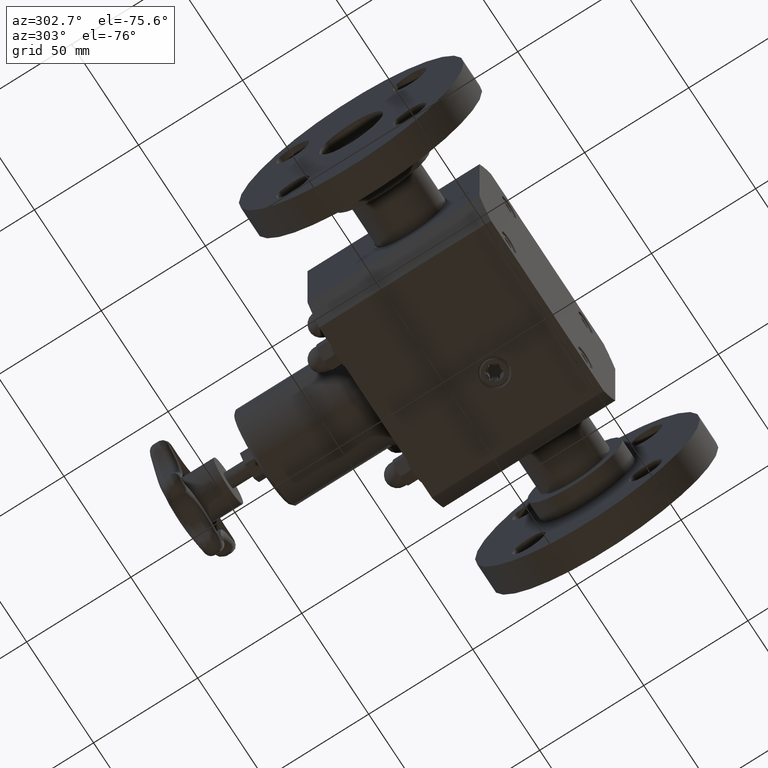
[diagram: clean part render]
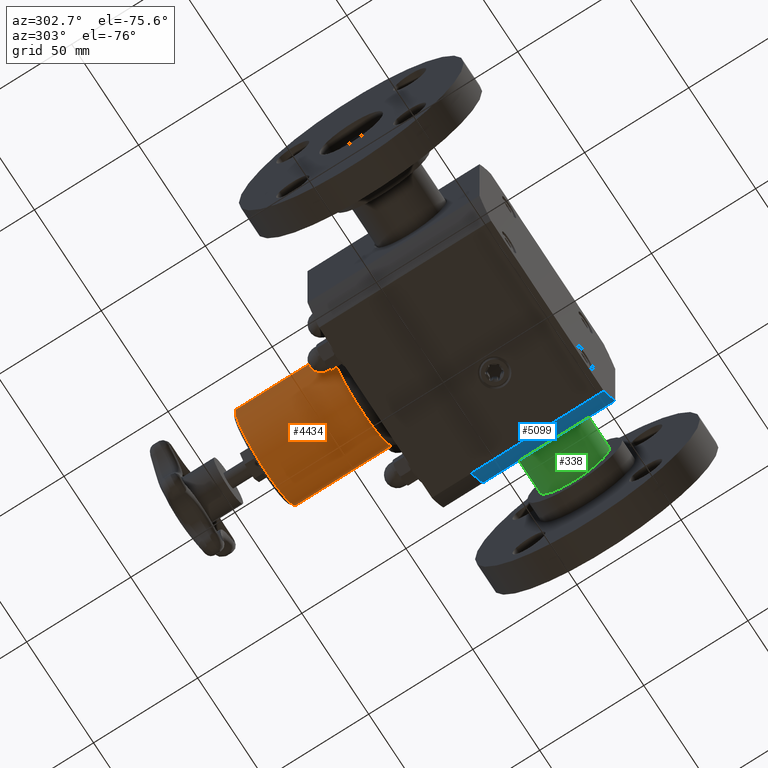
[diagram: same view with three faces highlighted in distinct colors, each labeled with its STEP entity id]
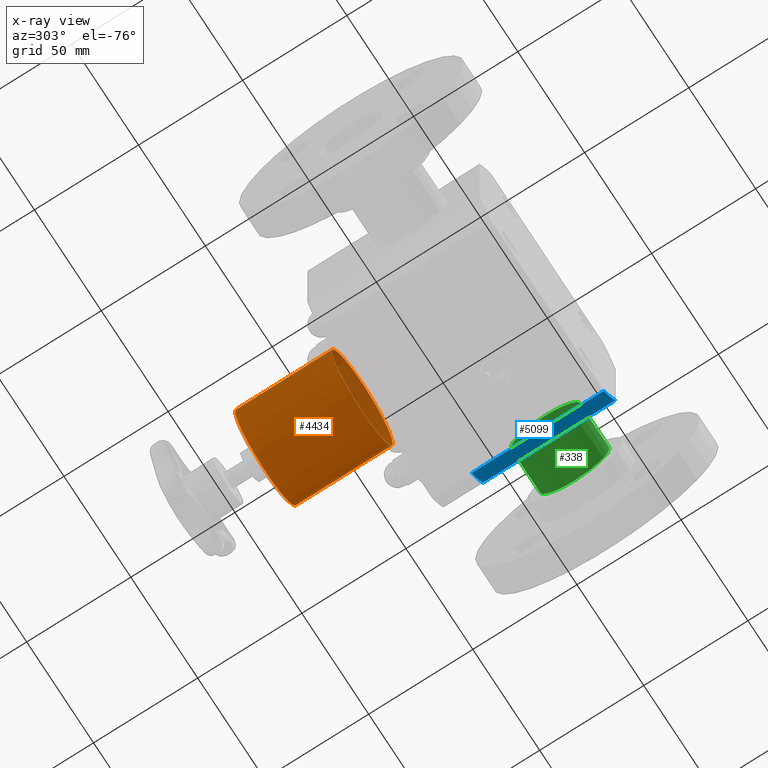
[diagram: x-ray of the same camera — body ghosted, the three highlighted faces saturated]
A machine part, auxiliary view with three faces highlighted in distinct colors.
The next image is the same camera in x-ray (body ghosted, the three faces saturated) — at least one of them is partly hidden behind the body in this view.
Their STEP definitions:

[orange] entity #4434 — the highlighted cylindrical surface (bore or boss wall) has radius 22.86 mm, axis along (0, -1, 0).
#4400=CARTESIAN_POINT('',(0.900000000000000,5.325000000000000,7.037240E-016));
#4401=VERTEX_POINT('',#4400);
#4402=CARTESIAN_POINT('',(6.993531E-016,5.325000000000000,5.463696E-016));
#4403=DIRECTION('',(0.0,-1.0,0.0));
#4404=DIRECTION('',(1.0,0.0,0.0));
#4405=AXIS2_PLACEMENT_3D('',#4402,#4403,#4404);
#4406=CIRCLE('',#4405,0.900000000000000);
#4407=EDGE_CURVE('',#4401,#4401,#4406,.T.);
#4415=CARTESIAN_POINT('',(6.993531E-016,4.412500000000000,5.463696E-016));
#4416=DIRECTION('',(5.780896E-045,-1.0,1.900469E-060));
#4417=DIRECTION('',(1.0,0.0,0.0));
#4418=AXIS2_PLACEMENT_3D('',#4415,#4416,#4417);
#4419=CYLINDRICAL_SURFACE('',#4418,0.900000000000000);
#4420=CARTESIAN_POINT('',(0.900000000000001,3.500000000000000,7.037240E-016));
#4421=VERTEX_POINT('',#4420);
#4422=CARTESIAN_POINT('',(6.993531E-016,3.500000000000000,5.463696E-016));
#4423=DIRECTION('',(0.0,-1.0,0.0));
#4424=DIRECTION('',(1.0,0.0,0.0));
#4425=AXIS2_PLACEMENT_3D('',#4422,#4423,#4424);
#4426=CIRCLE('',#4425,0.900000000000000);
#4427=EDGE_CURVE('',#4421,#4421,#4426,.T.);
#4428=ORIENTED_EDGE('',*,*,#4427,.F.);
#4429=EDGE_LOOP('',(#4428));
#4430=FACE_OUTER_BOUND('',#4429,.T.);
#4431=ORIENTED_EDGE('',*,*,#4407,.T.);
#4432=EDGE_LOOP('',(#4431));
#4433=FACE_BOUND('',#4432,.T.);
#4434=ADVANCED_FACE('',(#4430,#4433),#4419,.T.);

[blue] entity #5099 — the highlighted cylindrical surface (partial cylindrical patch) has radius 56.8452 mm, axis along (-0, 1, 0).
#4573=CARTESIAN_POINT('',(2.0,2.500000000000000,-1.004312700308026));
#4574=VERTEX_POINT('',#4573);
#4581=CARTESIAN_POINT('',(1.660916614403023,2.500000000000000,-1.500000000000000));
#4582=VERTEX_POINT('',#4581);
#4583=CARTESIAN_POINT('',(-1.445224E-044,2.500000000000000,0.0));
#4584=DIRECTION('',(4.616735E-045,-1.000000000000000,-2.318323E-045));
#4585=DIRECTION('',(-0.893655049151028,-5.166127E-045,0.448754557778385));
#4586=AXIS2_PLACEMENT_3D('',#4583,#4584,#4585);
#4587=CIRCLE('',#4586,2.238000000000000);
#4588=EDGE_CURVE('',#4582,#4574,#4587,.T.);
#4649=CARTESIAN_POINT('',(2.0,1.156179E-044,-1.004312700308026));
#4650=VERTEX_POINT('',#4649);
#4657=CARTESIAN_POINT('',(2.0,1.156179E-044,-1.004312700308026));
#4658=DIRECTION('',(0.0,1.0,0.0));
#4659=VECTOR('',#4658,2.500000000000000);
#4660=LINE('',#4657,#4659);
#4661=EDGE_CURVE('',#4650,#4574,#4660,.T.);
#4704=CARTESIAN_POINT('',(1.660916614403023,9.601586E-045,-1.500000000000000));
#4705=VERTEX_POINT('',#4704);
#4706=CARTESIAN_POINT('',(1.660916614403023,9.601586E-045,-1.500000000000000));
#4707=DIRECTION('',(0.0,1.0,0.0));
#4708=VECTOR('',#4707,2.500000000000000);
#4709=LINE('',#4706,#4708);
#4710=EDGE_CURVE('',#4705,#4582,#4709,.T.);
#5082=CARTESIAN_POINT('',(0.0,0.0,0.0));
#5083=DIRECTION('',(-5.780896E-045,1.0,0.0));
#5084=DIRECTION('',(-0.893655049151028,-5.166127E-045,0.448754557778385));
#5085=AXIS2_PLACEMENT_3D('',#5082,#5083,#5084);
#5086=CYLINDRICAL_SURFACE('',#5085,2.238000000000000);
#5087=ORIENTED_EDGE('',*,*,#4588,.T.);
#5088=ORIENTED_EDGE('',*,*,#4661,.F.);
#5089=CARTESIAN_POINT('',(0.0,0.0,0.0));
#5090=DIRECTION('',(4.616735E-045,-1.000000000000000,-2.318323E-045));
#5091=DIRECTION('',(-0.893655049151028,-5.166127E-045,0.448754557778385));
#5092=AXIS2_PLACEMENT_3D('',#5089,#5090,#5091);
#5093=CIRCLE('',#5092,2.238000000000000);
#5094=EDGE_CURVE('',#4705,#4650,#5093,.T.);
#5095=ORIENTED_EDGE('',*,*,#5094,.F.);
#5096=ORIENTED_EDGE('',*,*,#4710,.T.);
#5097=EDGE_LOOP('',(#5087,#5088,#5095,#5096));
#5098=FACE_OUTER_BOUND('',#5097,.T.);
#5099=ADVANCED_FACE('',(#5098),#5086,.T.);

[green] entity #338 — the highlighted cylindrical surface (bore or boss wall) has radius 16.7005 mm, axis along (-1, -0, 0).
#311=CARTESIAN_POINT('',(2.364999999999992,1.300000000000001,-1.977559E-016));
#312=DIRECTION('',(-1.0,-7.121208E-016,1.697475E-016));
#313=DIRECTION('',(0.0,0.0,1.0));
#314=AXIS2_PLACEMENT_3D('',#311,#312,#313);
#315=CYLINDRICAL_SURFACE('',#314,0.657500000000000);
#316=CARTESIAN_POINT('',(2.829999999999992,1.300000000000041,-0.657500000000000));
#317=VERTEX_POINT('',#316);
#318=CARTESIAN_POINT('',(2.829999999999992,1.300000000000001,-2.766885E-016));
#319=DIRECTION('',(1.0,0.0,0.0));
#320=DIRECTION('',(0.0,0.0,1.0));
#321=AXIS2_PLACEMENT_3D('',#318,#319,#320);
#322=CIRCLE('',#321,0.657500000000000);
#323=EDGE_CURVE('',#317,#317,#322,.T.);
#324=ORIENTED_EDGE('',*,*,#323,.F.);
#325=EDGE_LOOP('',(#324));
#326=FACE_OUTER_BOUND('',#325,.T.);
#327=CARTESIAN_POINT('',(1.966729520810137,1.300000000000040,-0.657500000000000));
#328=VERTEX_POINT('',#327);
#329=CARTESIAN_POINT('',(1.966729520810137,1.300000000000000,-1.301504E-016));
#330=DIRECTION('',(-1.0,0.0,0.0));
#331=DIRECTION('',(0.0,0.0,1.0));
#332=AXIS2_PLACEMENT_3D('',#329,#330,#331);
#333=CIRCLE('',#332,0.657500000000000);
#334=EDGE_CURVE('',#328,#328,#333,.T.);
#335=ORIENTED_EDGE('',*,*,#334,.F.);
#336=EDGE_LOOP('',(#335));
#337=FACE_BOUND('',#336,.T.);
#338=ADVANCED_FACE('',(#326,#337),#315,.T.);